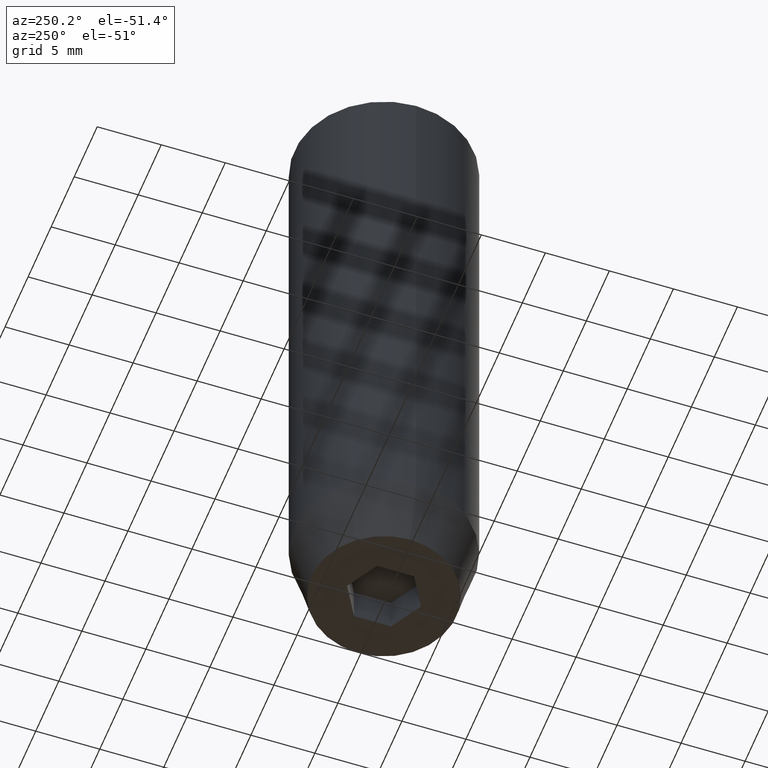
[diagram: clean part render]
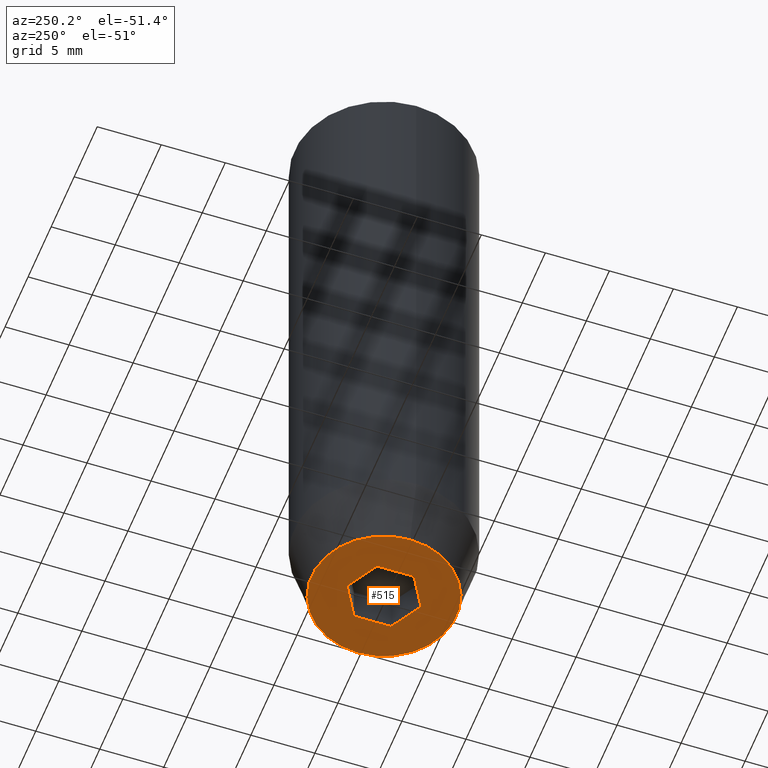
[diagram: same view with one face highlighted and labeled with its STEP entity id]
A machine part, auxiliary view. The second image highlights one B-rep face of the part: STEP entity #515.
In plain terms, the highlighted planar face has unit normal (0, 0, -1).
Its self-contained STEP definition (entity closure, byte-faithful):
#6 = CARTESIAN_POINT ( 'NONE',  ( 0.000000000000000000, 0.000000000000000000, -50.00000000000000000 ) ) ;
#9 = CARTESIAN_POINT ( 'NONE',  ( -5.660254037844384634, 7.752169791919240742E-16, -50.00000000000000000 ) ) ;
#36 = EDGE_CURVE ( 'NONE', #163, #445, #563, .T. ) ;
#41 = DIRECTION ( 'NONE',  ( 0.8660254037844385966, -0.5000000000000001110, 0.000000000000000000 ) ) ;
#55 = CARTESIAN_POINT ( 'NONE',  ( -2.168404344971008868E-16, 2.886751345948129099, -50.00000000000000000 ) ) ;
#61 = CARTESIAN_POINT ( 'NONE',  ( 1.249999999999999778, -2.165063509461096380, -50.00000000000000000 ) ) ;
#63 = CARTESIAN_POINT ( 'NONE',  ( 2.500000000000000000, 1.443375672974064328, -50.00000000000000000 ) ) ;
#73 = ORIENTED_EDGE ( 'NONE', *, *, #481, .F. ) ;
#86 = EDGE_LOOP ( 'NONE', ( #505, #443, #417, #414, #396, #73 ) ) ;
#88 = AXIS2_PLACEMENT_3D ( 'NONE', #573, #344, #112 ) ;
#89 = CARTESIAN_POINT ( 'NONE',  ( -2.500000000000000444, -1.443375672974064328, -50.00000000000000000 ) ) ;
#90 = CIRCLE ( 'NONE', #423, 5.660254037844384634 ) ;
#97 = FACE_OUTER_BOUND ( 'NONE', #314, .T. ) ;
#100 = CIRCLE ( 'NONE', #88, 5.660254037844384634 ) ;
#112 = DIRECTION ( 'NONE',  ( 1.000000000000000000, 0.000000000000000000, 0.000000000000000000 ) ) ;
#122 = VERTEX_POINT ( 'NONE', #321 ) ;
#135 = VECTOR ( 'NONE', #478, 1000.000000000000114 ) ;
#137 = CARTESIAN_POINT ( 'NONE',  ( 0.000000000000000000, -2.886751345948128211, -50.00000000000000000 ) ) ;
#144 = DIRECTION ( 'NONE',  ( 0.000000000000000000, 0.000000000000000000, -1.000000000000000000 ) ) ;
#158 = DIRECTION ( 'NONE',  ( 0.000000000000000000, -1.000000000000000000, 0.000000000000000000 ) ) ;
#160 = EDGE_CURVE ( 'NONE', #419, #122, #477, .T. ) ;
#163 = VERTEX_POINT ( 'NONE', #63 ) ;
#165 = VERTEX_POINT ( 'NONE', #233 ) ;
#183 = VERTEX_POINT ( 'NONE', #55 ) ;
#186 = FACE_BOUND ( 'NONE', #86, .T. ) ;
#187 = AXIS2_PLACEMENT_3D ( 'NONE', #504, #144, #278 ) ;
#190 = EDGE_CURVE ( 'NONE', #165, #215, #90, .T. ) ;
#198 = VERTEX_POINT ( 'NONE', #137 ) ;
#199 = DIRECTION ( 'NONE',  ( -0.8660254037844387076, -0.5000000000000001110, 0.000000000000000000 ) ) ;
#215 = VERTEX_POINT ( 'NONE', #9 ) ;
#222 = EDGE_CURVE ( 'NONE', #122, #183, #327, .T. ) ;
#233 = CARTESIAN_POINT ( 'NONE',  ( 5.660254037844384634, 0.000000000000000000, -50.00000000000000000 ) ) ;
#236 = EDGE_CURVE ( 'NONE', #445, #198, #284, .T. ) ;
#252 = LINE ( 'NONE', #255, #135 ) ;
#255 = CARTESIAN_POINT ( 'NONE',  ( -1.249999999999999556, -2.165063509461096825, -50.00000000000000000 ) ) ;
#265 = EDGE_CURVE ( 'NONE', #215, #165, #100, .T. ) ;
#278 = DIRECTION ( 'NONE',  ( -1.000000000000000000, 0.000000000000000000, -0.000000000000000000 ) ) ;
#282 = ORIENTED_EDGE ( 'NONE', *, *, #190, .F. ) ;
#284 = LINE ( 'NONE', #61, #408 ) ;
#296 = CARTESIAN_POINT ( 'NONE',  ( 2.500000000000000000, 0.000000000000000000, -50.00000000000000000 ) ) ;
#298 = VECTOR ( 'NONE', #41, 1000.000000000000000 ) ;
#314 = EDGE_LOOP ( 'NONE', ( #282, #524 ) ) ;
#321 = CARTESIAN_POINT ( 'NONE',  ( -2.500000000000000444, 1.443375672974064772, -50.00000000000000000 ) ) ;
#322 = PLANE ( 'NONE',  #187 ) ;
#323 = CARTESIAN_POINT ( 'NONE',  ( -2.500000000000000444, 0.000000000000000000, -50.00000000000000000 ) ) ;
#327 = LINE ( 'NONE', #426, #546 ) ;
#344 = DIRECTION ( 'NONE',  ( -0.000000000000000000, -0.000000000000000000, 1.000000000000000000 ) ) ;
#374 = DIRECTION ( 'NONE',  ( 1.000000000000000000, 0.000000000000000000, 0.000000000000000000 ) ) ;
#396 = ORIENTED_EDGE ( 'NONE', *, *, #36, .F. ) ;
#403 = CARTESIAN_POINT ( 'NONE',  ( 2.500000000000000000, -1.443375672974064106, -50.00000000000000000 ) ) ;
#406 = LINE ( 'NONE', #447, #298 ) ;
#408 = VECTOR ( 'NONE', #199, 999.9999999999998863 ) ;
#414 = ORIENTED_EDGE ( 'NONE', *, *, #236, .F. ) ;
#417 = ORIENTED_EDGE ( 'NONE', *, *, #569, .F. ) ;
#419 = VERTEX_POINT ( 'NONE', #89 ) ;
#420 = DIRECTION ( 'NONE',  ( 0.000000000000000000, 1.000000000000000000, 0.000000000000000000 ) ) ;
#423 = AXIS2_PLACEMENT_3D ( 'NONE', #6, #506, #374 ) ;
#426 = CARTESIAN_POINT ( 'NONE',  ( -1.250000000000000444, 2.165063509461097269, -50.00000000000000000 ) ) ;
#443 = ORIENTED_EDGE ( 'NONE', *, *, #160, .F. ) ;
#445 = VERTEX_POINT ( 'NONE', #403 ) ;
#447 = CARTESIAN_POINT ( 'NONE',  ( 1.250000000000000222, 2.165063509461096825, -50.00000000000000000 ) ) ;
#465 = VECTOR ( 'NONE', #420, 1000.000000000000000 ) ;
#477 = LINE ( 'NONE', #323, #465 ) ;
#478 = DIRECTION ( 'NONE',  ( -0.8660254037844387076, 0.4999999999999998890, 0.000000000000000000 ) ) ;
#481 = EDGE_CURVE ( 'NONE', #183, #163, #406, .T. ) ;
#501 = VECTOR ( 'NONE', #158, 1000.000000000000000 ) ;
#504 = CARTESIAN_POINT ( 'NONE',  ( 0.000000000000000000, 5.660254037844384634, -50.00000000000000000 ) ) ;
#505 = ORIENTED_EDGE ( 'NONE', *, *, #222, .F. ) ;
#506 = DIRECTION ( 'NONE',  ( -0.000000000000000000, -0.000000000000000000, 1.000000000000000000 ) ) ;
#515 = ADVANCED_FACE ( 'NONE', ( #186, #97 ), #322, .T. ) ;
#516 = DIRECTION ( 'NONE',  ( 0.8660254037844385966, 0.5000000000000001110, 0.000000000000000000 ) ) ;
#524 = ORIENTED_EDGE ( 'NONE', *, *, #265, .F. ) ;
#546 = VECTOR ( 'NONE', #516, 1000.000000000000000 ) ;
#563 = LINE ( 'NONE', #296, #501 ) ;
#569 = EDGE_CURVE ( 'NONE', #198, #419, #252, .T. ) ;
#573 = CARTESIAN_POINT ( 'NONE',  ( 0.000000000000000000, 0.000000000000000000, -50.00000000000000000 ) ) ;